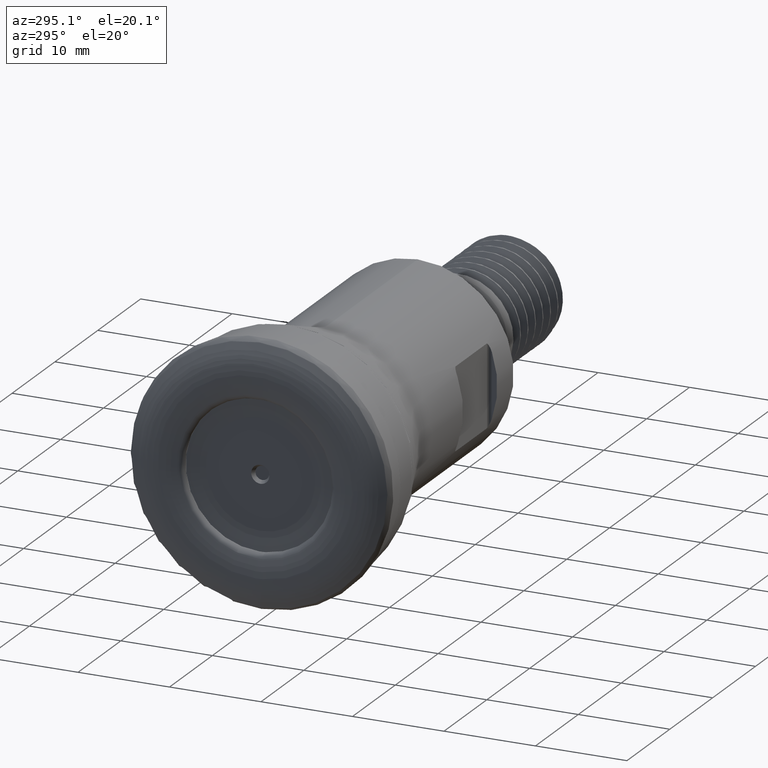
[diagram: clean part render]
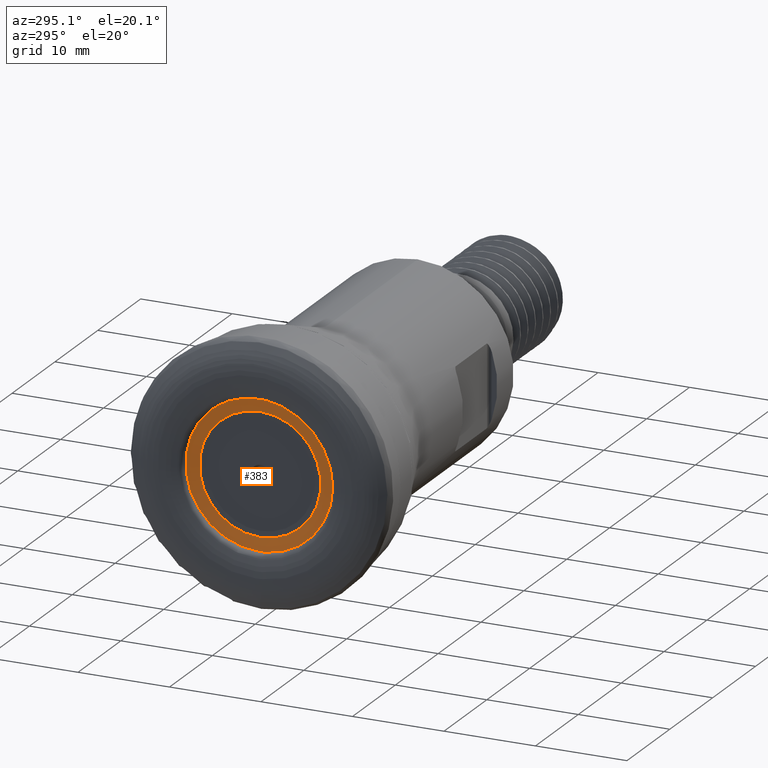
[diagram: same view with one face highlighted and labeled with its STEP entity id]
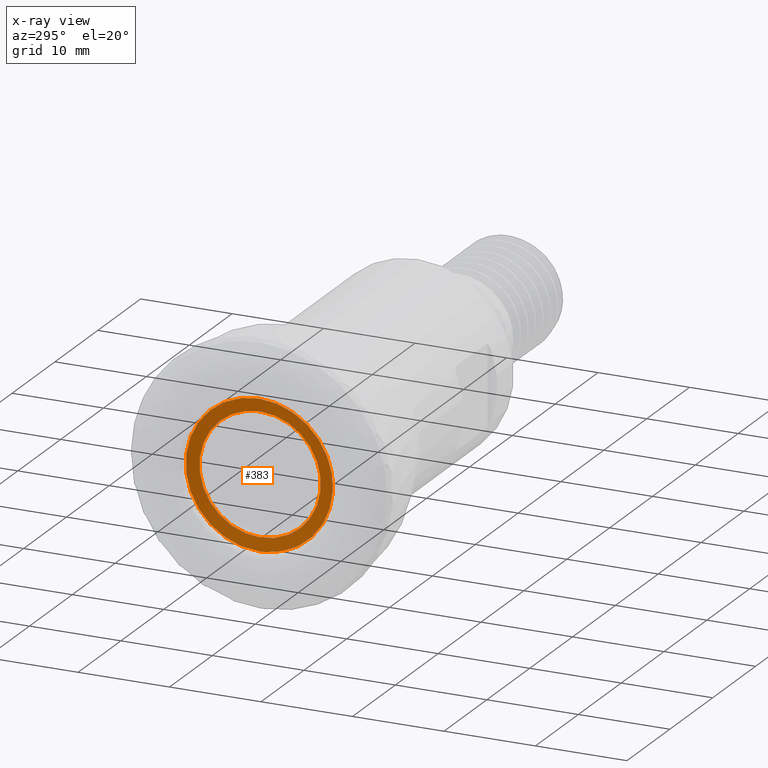
[diagram: x-ray of the same camera — body ghosted, the highlighted face saturated]
A machine part, auxiliary view. The second image highlights one B-rep face of the part: STEP entity #383.
The next image is the same camera in x-ray: the body ghosted, the highlighted face saturated — about 0% of this face is hidden behind the body in this view.
In plain terms, the highlighted conical surface has half-angle 82.235 deg.
Its self-contained STEP definition (entity closure, byte-faithful):
#312=CONICAL_SURFACE('',#1183,9.6,82.234833981575);
#383=ADVANCED_FACE('',(#499,#500),#312,.F.);
#499=FACE_BOUND('',#629,.T.);
#500=FACE_BOUND('',#630,.T.);
#629=EDGE_LOOP('',(#829));
#630=EDGE_LOOP('',(#830));
#829=ORIENTED_EDGE('',*,*,#1020,.T.);
#830=ORIENTED_EDGE('',*,*,#1018,.T.);
#918=VERTEX_POINT('',#3033);
#920=VERTEX_POINT('',#3042);
#1018=EDGE_CURVE('',#918,#918,#1081,.T.);
#1020=EDGE_CURVE('',#920,#920,#1083,.T.);
#1081=CIRCLE('',#1179,8.0482668347656);
#1083=CIRCLE('',#1181,6.63622717170895);
#1179=AXIS2_PLACEMENT_3D('',#3032,#1428,#1429);
#1181=AXIS2_PLACEMENT_3D('',#3041,#1433,#1434);
#1183=AXIS2_PLACEMENT_3D('',#3044,#1437,#1438);
#1428=DIRECTION('',(-1.,0.,0.));
#1429=DIRECTION('',(0.,0.,-1.));
#1433=DIRECTION('',(1.,0.,0.));
#1434=DIRECTION('',(0.,0.,1.));
#1437=DIRECTION('',(-1.,0.,0.));
#1438=DIRECTION('',(3.77990298367967E-18,0.,1.));
#3032=CARTESIAN_POINT('',(0.961599977077408,0.,0.));
#3033=CARTESIAN_POINT('',(0.961599977077408,0.,-8.0482668347656));
#3041=CARTESIAN_POINT('',(1.15415084022148,0.,0.));
#3042=CARTESIAN_POINT('',(1.15415084022148,0.,6.63622717170895));
#3044=CARTESIAN_POINT('',(0.750000000000001,0.,0.));